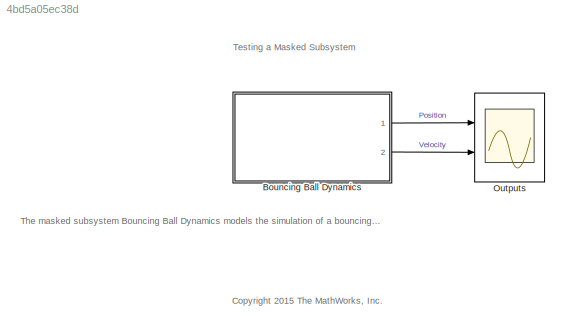
MODEL slx_4bd5a05ec38d
KIND model
CONFIG AbsTol = 1E-6
CONFIG FixedStep = auto
CONFIG MaxStep = 0.01
CONFIG MinStep = auto
CONFIG RelTol = 1e-3
CONFIG SampleTimeConstraint = Unconstrained
CONFIG Solver = ode23
CONFIG SolverMode = Auto
CONFIG SolverName = ode23
CONFIG StartTime = 0.0
CONFIG StopTime = 100
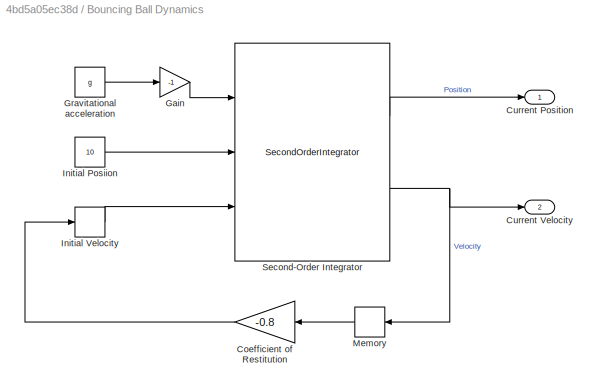
BLOCK [SubSystem] Bouncing Ball Dynamics
  Ports = [0, 2]
  RequestExecContextInheritance = off
  Variant = off
BLOCK [Gain] Bouncing Ball Dynamics/Coefficient of Restitution
  Gain = -0.8
  OutDataTypeStr = Inherit: Inherit via internal rule
  ParamDataTypeStr = Inherit: Inherit via internal rule
  SaturateOnIntegerOverflow = off
BLOCK [Outport] Bouncing Ball Dynamics/Current Position
  IconDisplay = Port number
BLOCK [Outport] Bouncing Ball Dynamics/Current Velocity
  IconDisplay = Port number
  Port = 2
BLOCK [Gain] Bouncing Ball Dynamics/Gain
  Gain = -1
  OutDataTypeStr = Inherit: Inherit via internal rule
  ParamDataTypeStr = Inherit: Inherit via internal rule
  SaturateOnIntegerOverflow = off
BLOCK [Constant] Bouncing Ball Dynamics/Gravitational acceleration
  OutDataTypeStr = double
  Value = g
BLOCK [Constant] Bouncing Ball Dynamics/Initial Posiion
  Value = 10
BLOCK [InitialCondition] Bouncing Ball Dynamics/Initial Velocity 
  Value = 15
BLOCK [Memory] Bouncing Ball Dynamics/Memory
BLOCK [SecondOrderIntegrator] Bouncing Ball Dynamics/Second-Order Integrator
  ICSourceDXDT = external
  ICSourceX = external
  ICX = 10.0
  LimitX = on
  LowerLimitX = 0.0
  Ports = [3, 2]
  ReinitDXDTwhenXreachesSaturation = on
  StateNameDXDT = 'Velocity'
  StateNameX = 'Position'
BLOCK [Scope] Outputs
  NumInputPorts = 2
  Ports = [2]
  ScopeSpecificationString = C++SS(StrPVP('Location','[-550, 158, -70, 744]'),StrPVP('Open','off'),MxPVP('AxesTitles',24,'struct(''axes1'',''%<SignalLabel>'',''axes2'',''%<SignalLabel>'')'),MxPVP('ScopeGraphics',28,'struct(''FigureColor'',''[0.501960784313725 0.501960784313725 0.501960784313725]'',''AxesColor'',''[0 0 0]'',''AxesTickColor'',''[1 1 1]'',''LineColors'',''[1 1 0;1 0 1;0 1 1;1 0 0;0 1 0;0 0 1]'',''LineStyles'',''...<+313ch>
ANNOTATION (root): The masked subsystem Bouncing Ball Dynamics models the simulation of a bouncing ball which is dropped with an initial velocity of 15 m/s from a height of 10 m. The subsystem uses a mask parameter 'g' which represents gravitational acceleration. It outputs the current position and velocity of the bouncing ball.
ANNOTATION (root): Testing a Masked Subsystem
ANNOTATION (root): <copyright redacted>
LINE Bouncing Ball Dynamics/Coefficient of Restitution:1 -> Bouncing Ball Dynamics/Initial Velocity :1
LINE Bouncing Ball Dynamics/Gain:1 -> Bouncing Ball Dynamics/Second-Order Integrator:1
LINE Bouncing Ball Dynamics/Gravitational acceleration:1 -> Bouncing Ball Dynamics/Gain:1
LINE Bouncing Ball Dynamics/Initial Posiion:1 -> Bouncing Ball Dynamics/Second-Order Integrator:2
LINE Bouncing Ball Dynamics/Initial Velocity :1 -> Bouncing Ball Dynamics/Second-Order Integrator:3
LINE Bouncing Ball Dynamics/Memory:1 -> Bouncing Ball Dynamics/Coefficient of Restitution:1
LINE Bouncing Ball Dynamics/Second-Order Integrator:1 -> Bouncing Ball Dynamics/Current Position:1
NET Bouncing Ball Dynamics/Second-Order Integrator:2 -> Bouncing Ball Dynamics/Current Velocity:1, Bouncing Ball Dynamics/Memory:1
LINE Bouncing Ball Dynamics:1 -> Outputs:1
LINE Bouncing Ball Dynamics:2 -> Outputs:2
note: NET lines group one-source signal fan-out (src -> all destinations, sorted); 1:1 wires keep LINE
